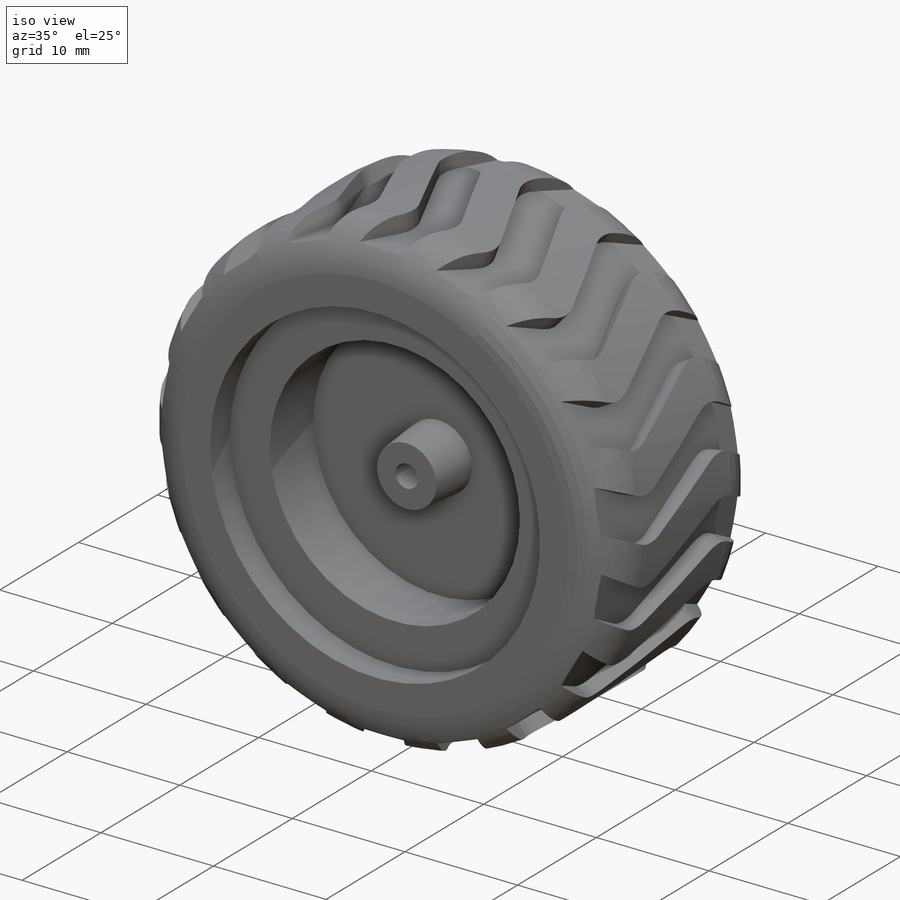
[diagram: iso view]
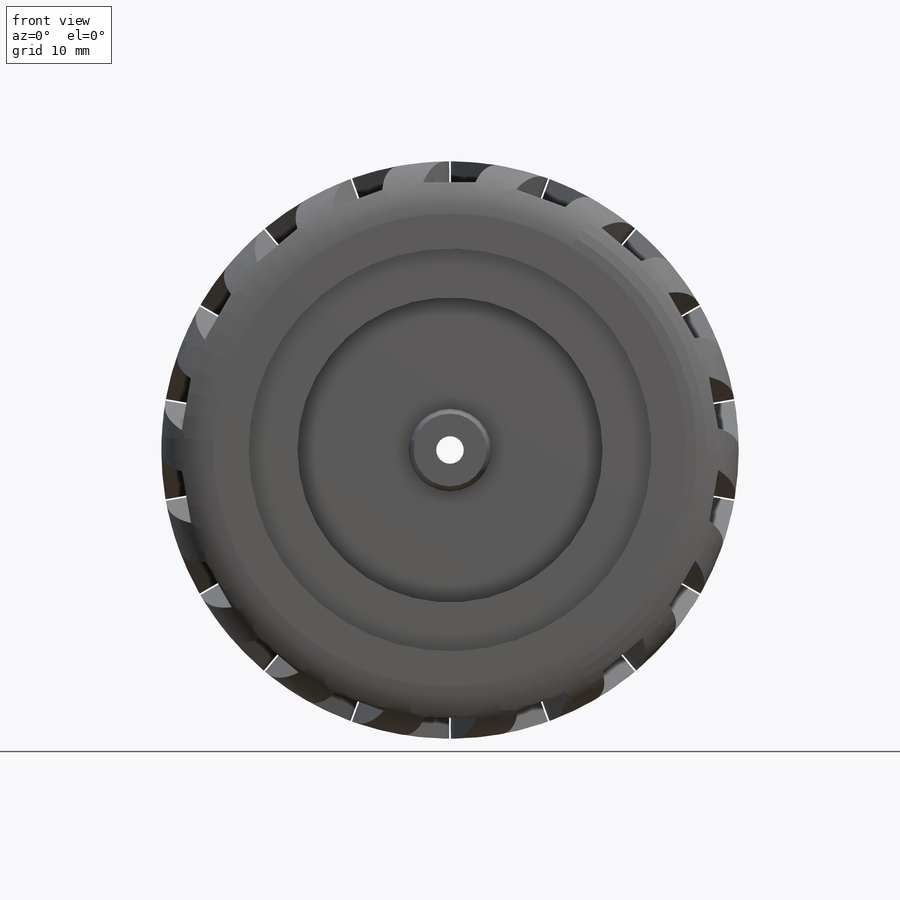
[diagram: front view]
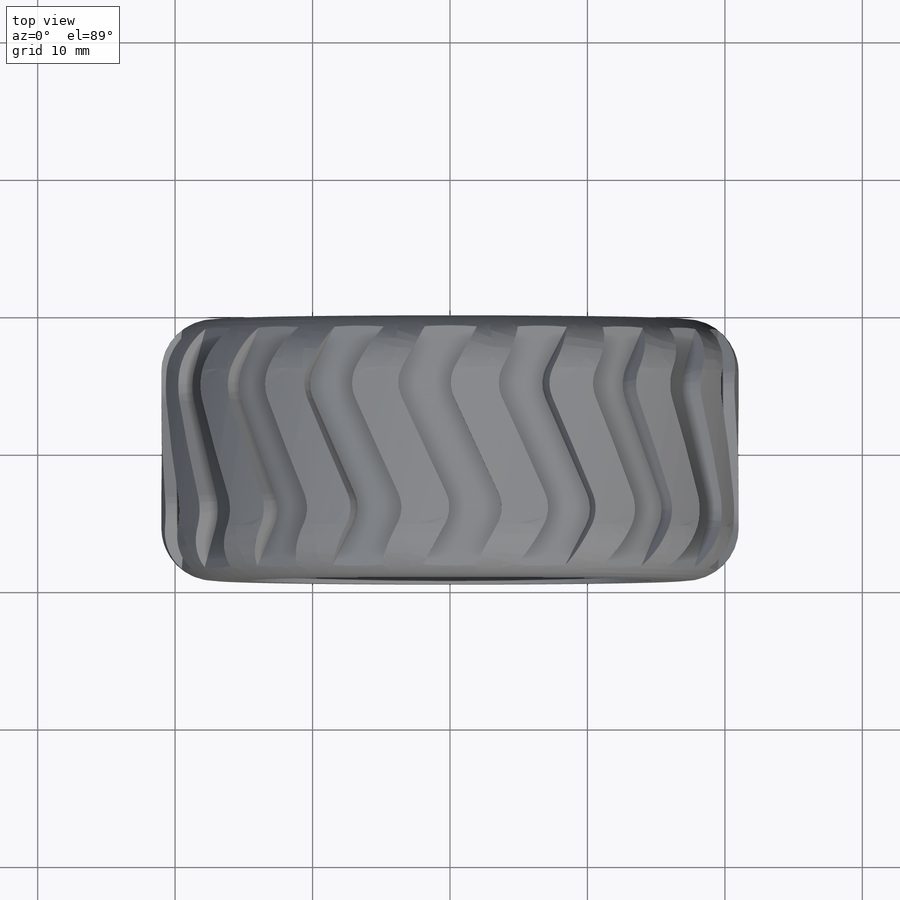
[diagram: top view]
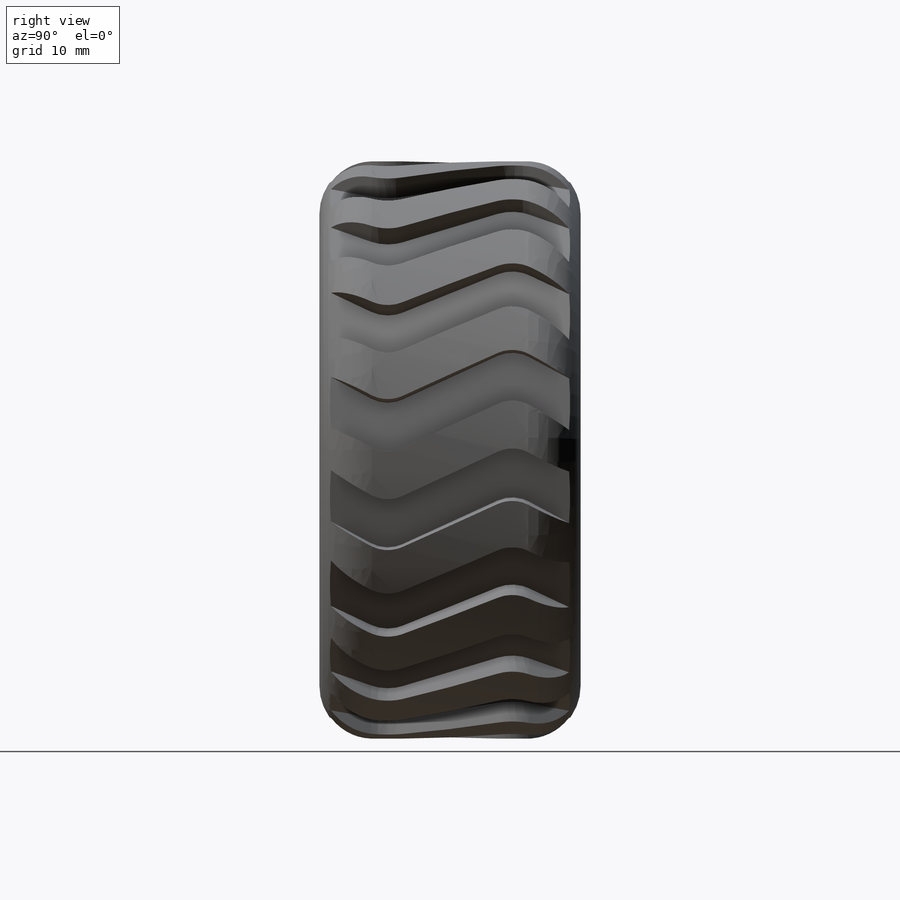
[diagram: right view]
SOLIDWORKS PART (.sldprt)
format: sldprt  version: not decoded by parser v0  size: 1,281,024 bytes
history: native  units: mm
features: sketch x3, material x1, revolve x1, fillet x1, plane x1, sweep x1, pattern_circular x1 (+14 scaffold rows collapsed)
feature tree (23):
  scaffold x14  (default folders/planes/origin — collapsed)
  material  "Material <not specified>"
  sketch  "Sketch2"  dims[c1.D1=21.0mm c1.D2=17.3mm c1.D3=2.5mm c1.D4=11.0mm c1.D5=19.0mm c2.D1=2.0mm c2.D6=6.35mm c2.D2=3.0mm c2.D7=4.0mm c3.D7=95.0deg c3.D8=21.0mm c3.D9=8.1mm c3.D10=1.651mm]
  revolve  "Revolve1"  Angle=360deg
  fillet  "Fillet1"  Radius=3.81mm
  plane  "Plane1"
  sketch  "Sketch3"  dims[D1=2.54mm]
  sketch  "Sketch4"  dims[D1=3.048mm D2=3.81mm]
  sweep  "Cut-Sweep1"
  pattern_circular  "CirPattern1"  Count=18 Angle=360deg
decode coverage: 6 of 7 modeling features carry decoded parameters
note: suppression state not decoded; provenance and decode notes live in map.json
